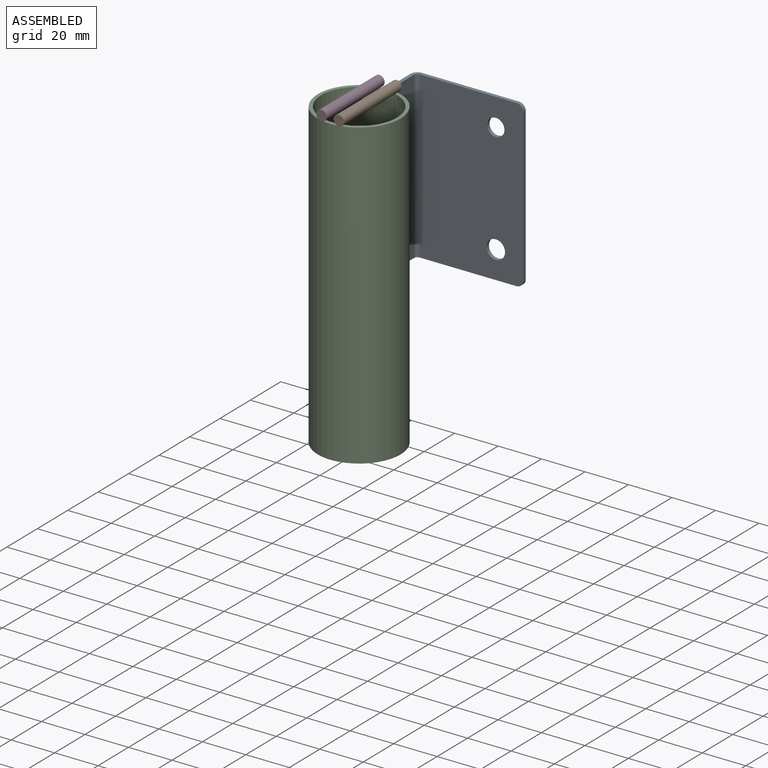
[diagram: assembled view]
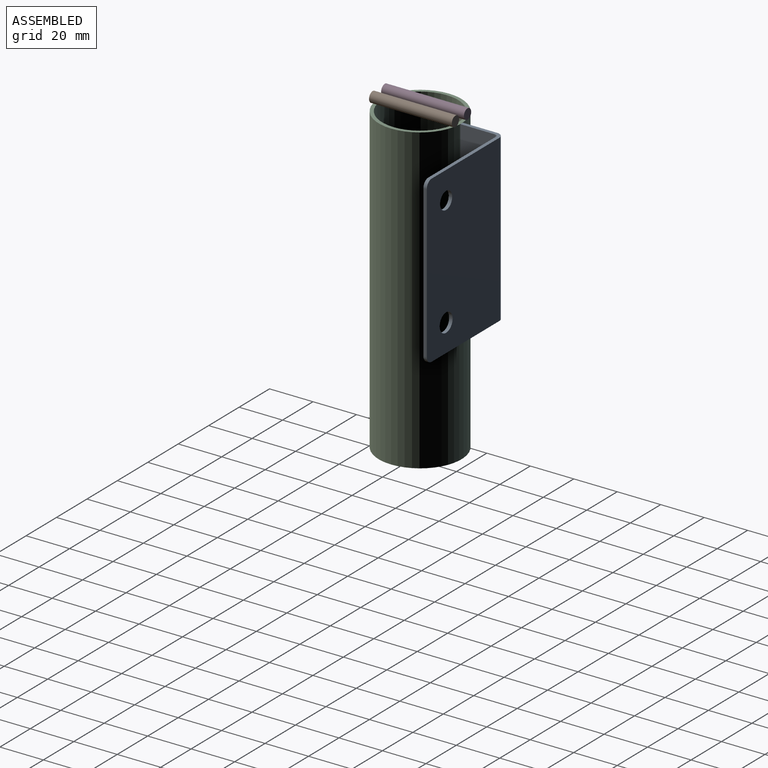
[diagram: assembled view, second angle]
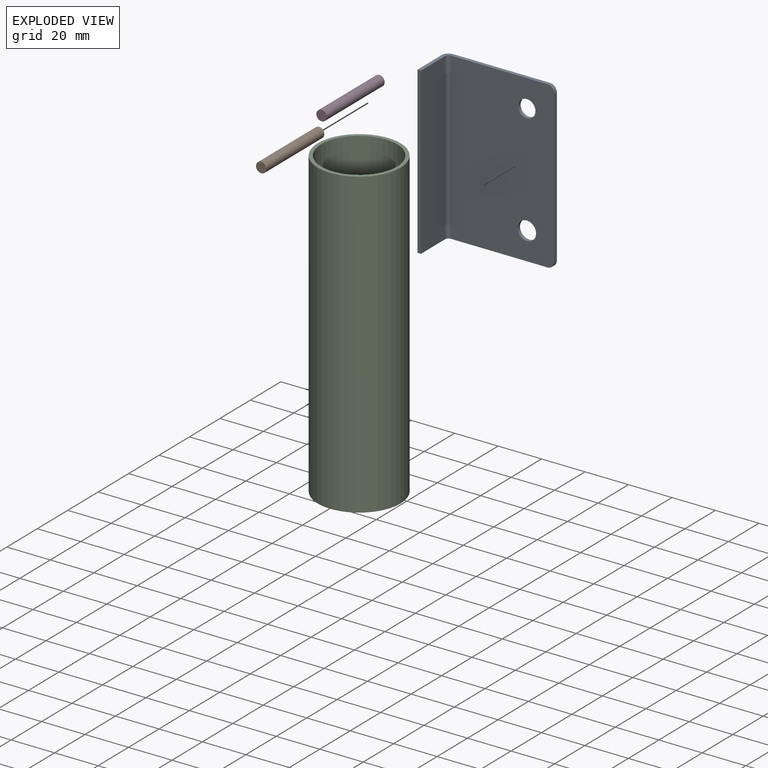
[diagram: exploded view]
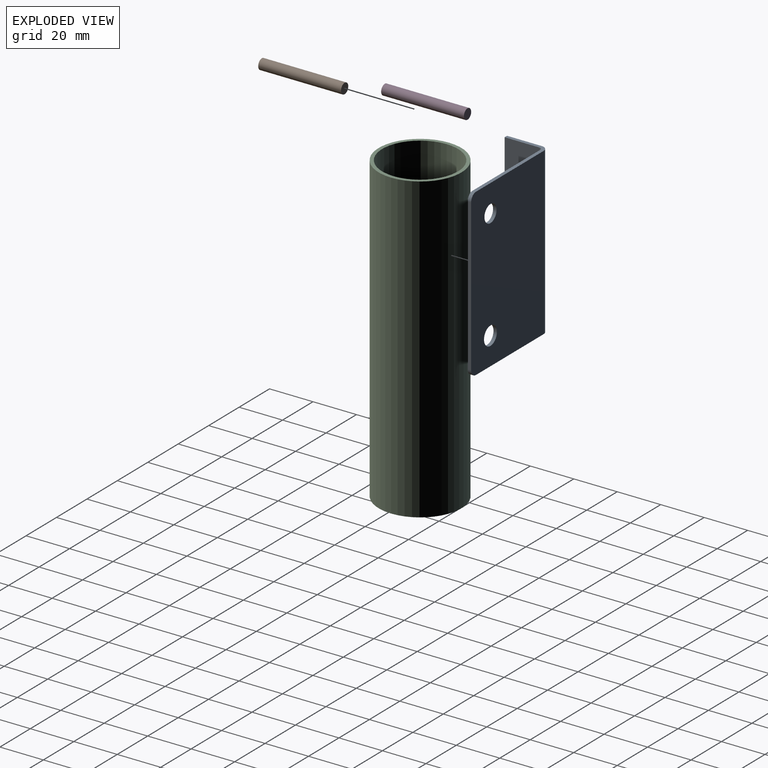
[diagram: exploded view, second angle]
ASSEMBLY  parts=4 mates=2
PART A: 14 faces, bbox 50.8x19.1x76.2 mm
  f0: plane 47.63x19.05mm, normal (0,0,1), area 101.7mm2, adj f3,f4,f5,f6,f7,f8,f9,f11
  f1: plane 47.63x19.05mm, normal (0,0,-1), area 101.7mm2, adj f3,f4,f5,f6,f7,f8,f9,f10
  f2: plane 69.85x1.59mm, normal (1,0,0), area 110.9mm2, adj f4,f6,f10,f11
  f3: plane 76.2x1.59mm, normal (0,-1,0), area 121mm2, adj f0,f1,f5,f7
  f4: plane 76.2x47.63mm, normal (0,1,0), area 3518.4mm2, adj f0,f1,f2,f9,f10,f11,f12,f13
  f5: plane 76.2x15.88mm, normal (-1,0,0), area 1209.7mm2, adj f0,f1,f3,f9
  f6: plane 76.2x47.63mm, normal (0,-1,0), area 3518.4mm2, adj f0,f1,f2,f8,f10,f11,f12,f13
  f7: plane 76.2x15.88mm, normal (1,0,0), area 1209.7mm2, adj f0,f1,f3,f8
  f8: cylinder r=1.59mm len=76.2mm, axis (0,0,-1), area 190mm2, adj f0,f1,f6,f7
  f9: cylinder r=3.17mm len=76.2mm, axis (0,0,1), area 380mm2, adj f0,f1,f4,f5
  f10: cylinder r=3.17mm len=3.18mm, axis (0,1,0), area 7.9mm2, adj f1,f2,f4,f6
  f11: cylinder r=3.17mm len=3.18mm, axis (0,-1,0), area 7.9mm2, adj f0,f2,f4,f6
  f12: cylinder r=4.25mm len=8.5mm, axis (0,1,0), area 42.4mm2, adj f4,f6
  f13: cylinder r=3.97mm len=7.94mm, axis (0,1,0), area 39.6mm2, adj f4,f6
PART B: 3 faces, bbox 4.8x38.1x4.8 mm
  f0: cylinder r=2.38mm len=38.1mm, axis (0,-1,0), area 570mm2, adj f1,f2
  f1: plane 4.76x4.76mm, normal (0,1,0), area 17.8mm2, adj f0
  f2: plane 4.76x4.76mm, normal (0,-1,0), area 17.8mm2, adj f0
PART C: 4 faces, bbox 38.1x38.1x139.7 mm
  f0: cylinder r=19.05mm len=139.7mm, axis (0,0,-1), area 16721.3mm2, adj f1,f2
  f1: plane 38.1x38.1mm, normal (0,0,1), area 182.1mm2, adj f0,f3
  f2: plane 38.1x38.1mm, normal (0,0,-1), area 182.1mm2, adj f0,f3
  f3: cylinder r=17.46mm len=139.7mm, axis (0,0,-1), area 15327.9mm2, adj f1,f2
PART D: same geometry as B
PLACE A at identity
PLACE B rot(axis=(1,0,0),180deg) t=(4.76,-19.05,78.58)mm
PLACE C t=(0.79,-38.1,-63.5)mm
PLACE D rot(axis=(1,0,0),180deg) t=(-3.18,-19.05,78.58)mm
MATE fastened B.f0 <-> A.f3  axis (0,1,0) through (4.76,-19.05,78.58)mm
MATE fastened C.f0 <-> A.f0  axis (0,0,-1) through (0.79,-38.1,76.2)mm
